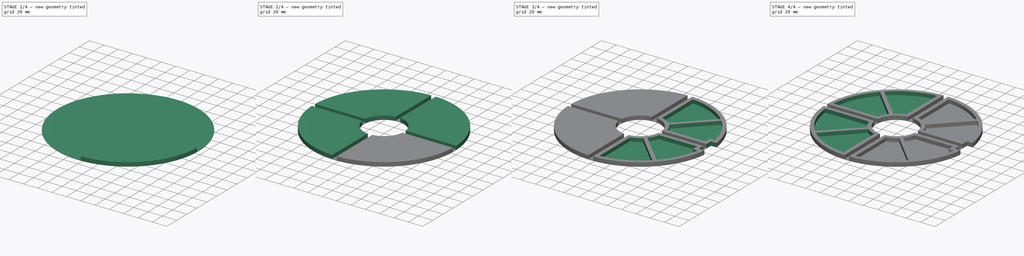
[diagram: build sequence overview — one tinted view per stage of 4, left to right]
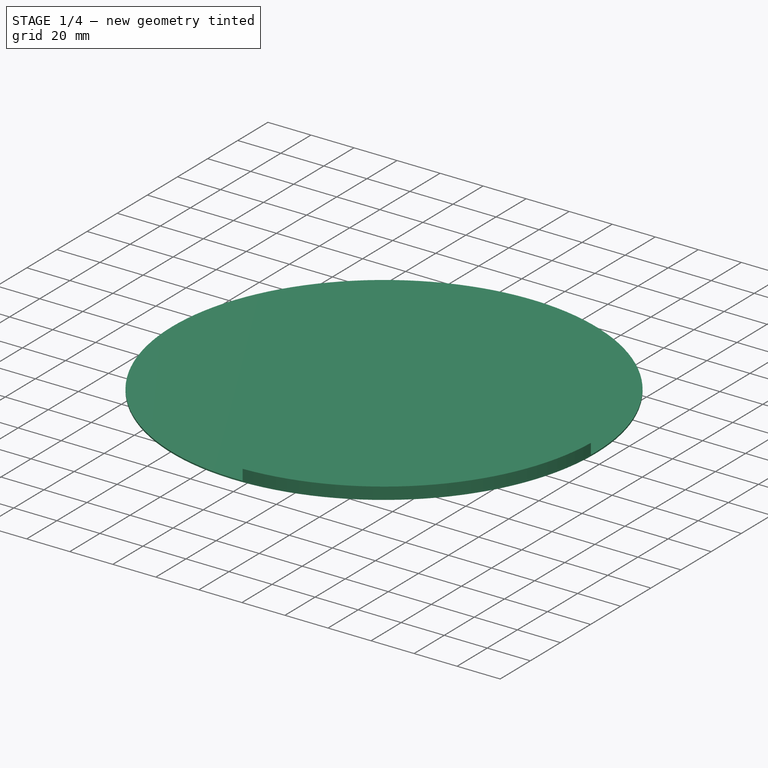
[diagram: stage 1 of 4 — iso view after this stage's code; geometry added in this stage tinted green]
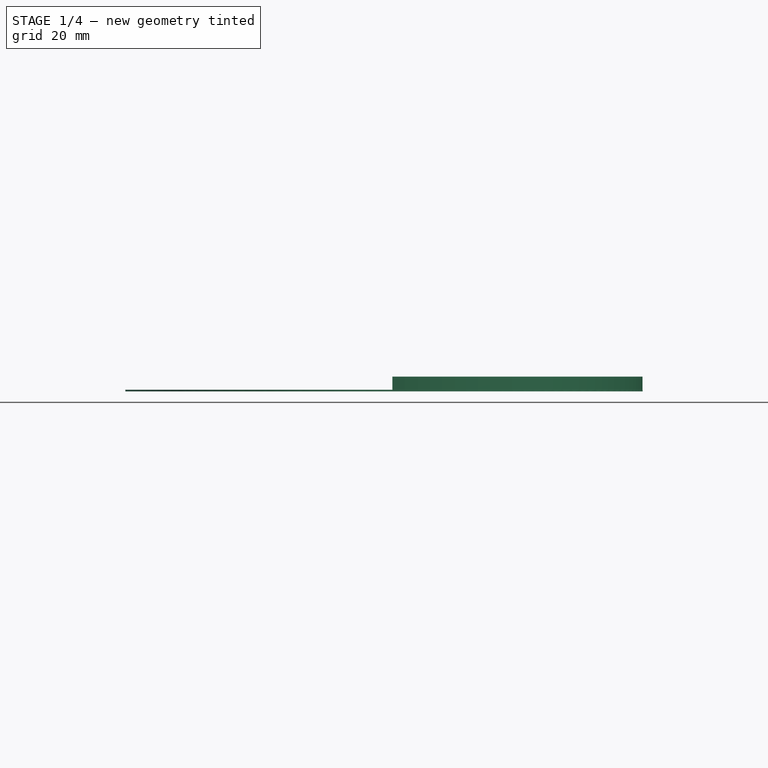
[diagram: stage 1 of 4 — front view after this stage's code; geometry added in this stage tinted green]
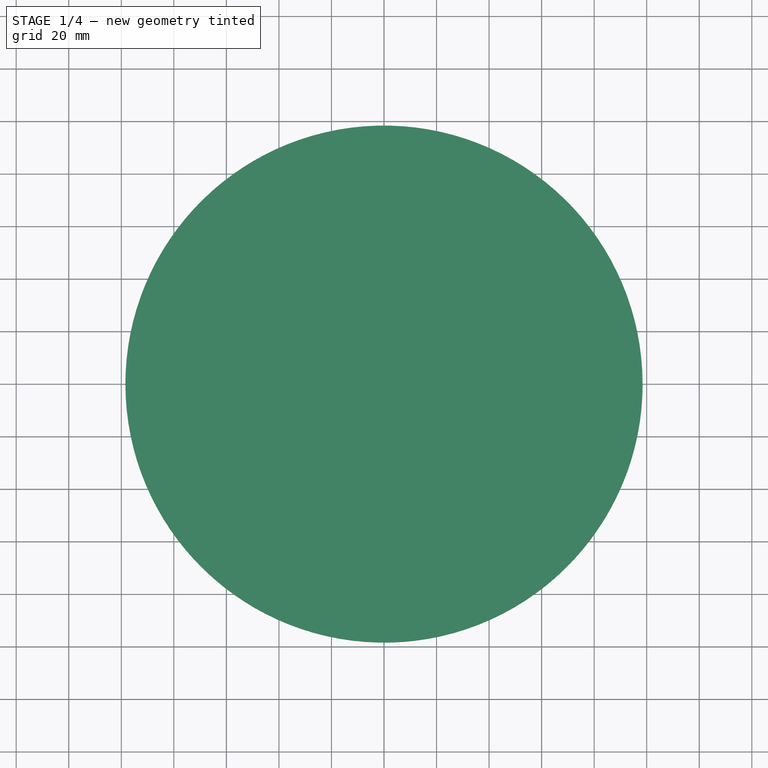
[diagram: stage 1 of 4 — top view after this stage's code; geometry added in this stage tinted green]
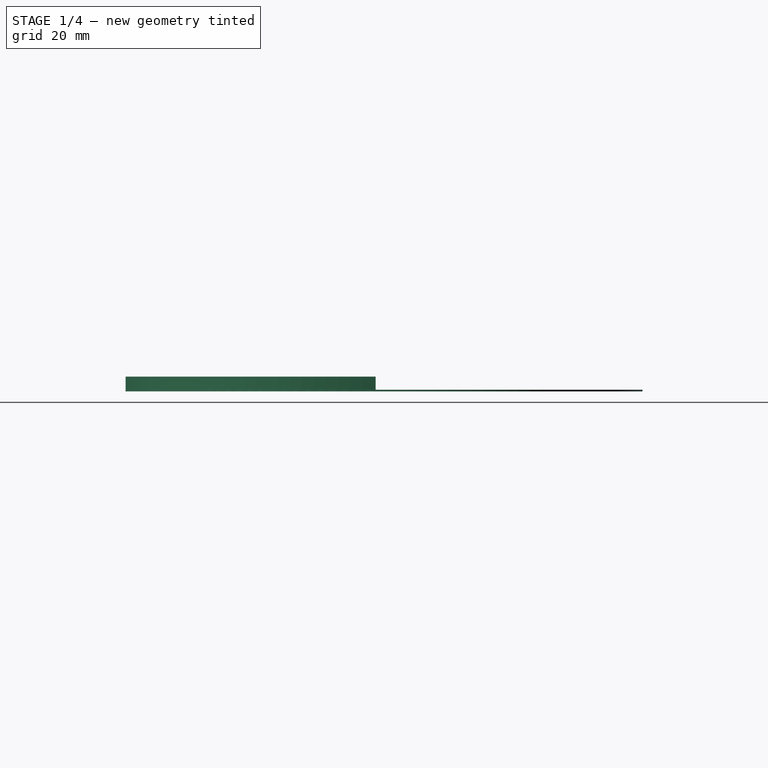
[diagram: stage 1 of 4 — right view after this stage's code; geometry added in this stage tinted green]
FCSTD DOCUMENT  (FreeCAD 0.14R3702 (Git))
Label: spacer
License: CC-BY 3.0
LicenseURL: http://creativecommons.org/licenses/by/3.0/
objects: Sketcher::SketchObject×6, PartDesign::Pocket×4, PartDesign::Pad×2, PartDesign::Mirrored×2, PartDesign::PolarPattern×1
note: 21 computed .brp shape members not serialized (recipe doc carries the construction recipe); baked Part::Feature solids carry a one-line shape summary decoded from their .brp

FEATURE [Sketcher::SketchObject] Sketch
  sketch-geometry (1):
    g0: Circle CenterX=0 CenterY=0 CenterZ=0 NormalX=0 NormalY=0 NormalZ=1 Radius=98.425
  constraints (2):
    c: Coincident(g0,g-1)
    c: Radius(g0) = 98.425
FEATURE [PartDesign::Pad] Pad
  Length = 0.6
  Length2 = 0.3
  Reversed = true
  Sketch = -> Sketch
  Type = 0
FEATURE [Sketcher::SketchObject] Sketch001
  Support = -> Pad [Face2]
  sketch-geometry (4):
    g0: ArcOfCircle CenterX=0 CenterY=0 CenterZ=0 NormalX=0 NormalY=0 NormalZ=1 Radius=22.225 StartAngle=4.85574 EndAngle=6.13984
    g1: ArcOfCircle CenterX=0 CenterY=0 CenterZ=0 NormalX=0 NormalY=0 NormalZ=1 Radius=98.425 StartAngle=4.74465 EndAngle=6.25092
    g2: LineSegment StartX=21.997 StartY=-3.175 StartZ=0 EndX=98.3738 EndY=-3.175 EndZ=0
    g3: LineSegment StartX=3.175 StartY=-21.997 StartZ=0 EndX=3.175 EndY=-98.3738 EndZ=0
  constraints (12):
    c: Coincident(g0,g-1)
    c: Coincident(g1,g-1)
    c: Horizontal(g2)
    c: Coincident(g2,g1)
    c: Coincident(g2,g0)
    c: Coincident(g3,g0)
    c: Coincident(g3,g1)
    c: Vertical(g3)
    c: Radius(g0) = 22.225
    c: Radius(g1) = 98.425
    c: DistanceY(g-1,g0) = -3.175
    c: DistanceX(g-1,g0) = 3.175
FEATURE [PartDesign::Pad] Pad001
  Length = 5
  Length2 = 0.3
  Sketch = -> Sketch001
  Type = 0
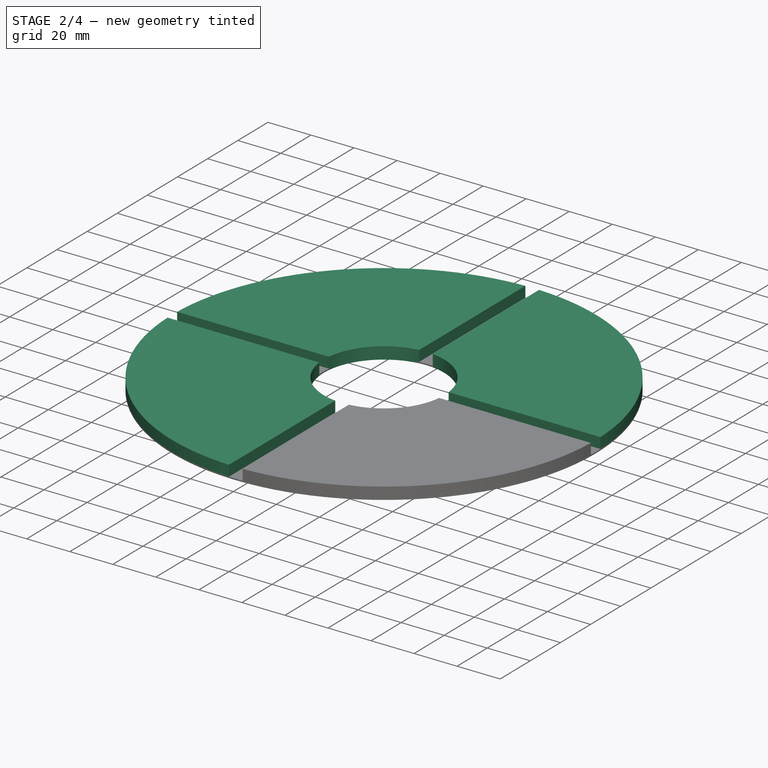
[diagram: stage 2 of 4 — iso view after this stage's code; geometry added in this stage tinted green]
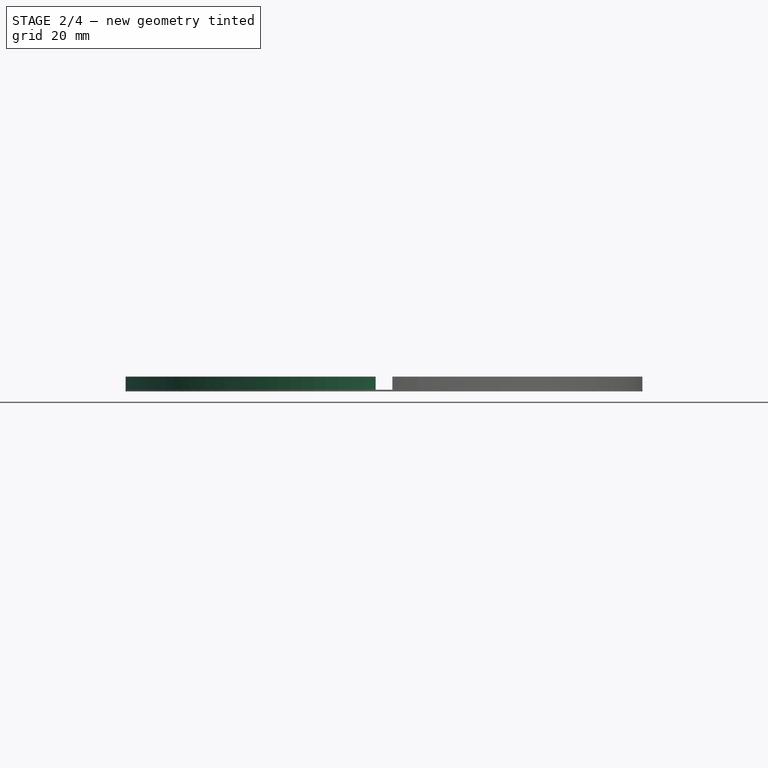
[diagram: stage 2 of 4 — front view after this stage's code; geometry added in this stage tinted green]
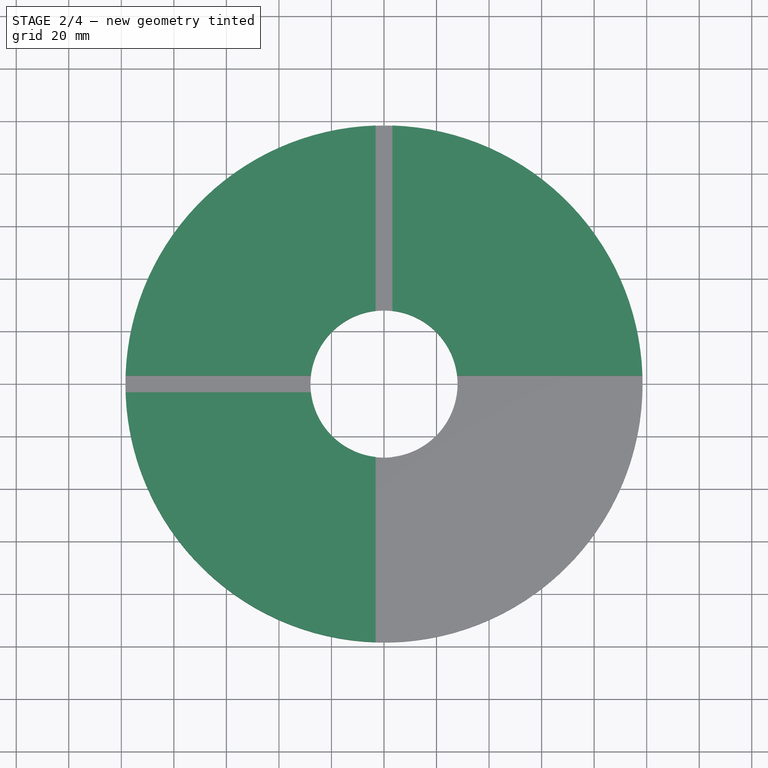
[diagram: stage 2 of 4 — top view after this stage's code; geometry added in this stage tinted green]
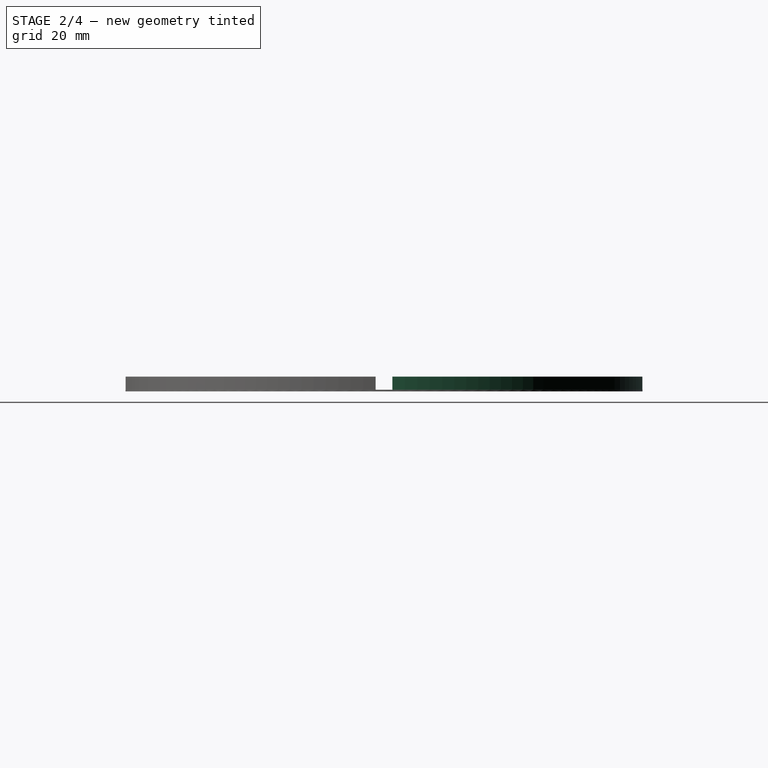
[diagram: stage 2 of 4 — right view after this stage's code; geometry added in this stage tinted green]
FEATURE [PartDesign::PolarPattern] PolarPattern
  Angle = 360
  Axis = -> Sketch001 [N_Axis]
  Occurrences = 4
  Originals = -> [Pad001]
FEATURE [Sketcher::SketchObject] Sketch002
  Placement = pos=(0,0,5) rot=(0,0,1;0rad)
  Support = -> PolarPattern [Face23]
  sketch-geometry (1):
    g0: Circle CenterX=0 CenterY=0 CenterZ=0 NormalX=0 NormalY=0 NormalZ=1 Radius=28
  constraints (2):
    c: Coincident(g0,g-1)
    c: Radius(g0) = 28
FEATURE [PartDesign::Pocket] Pocket
  Length = 5
  Sketch = -> Sketch002
  Type = 1
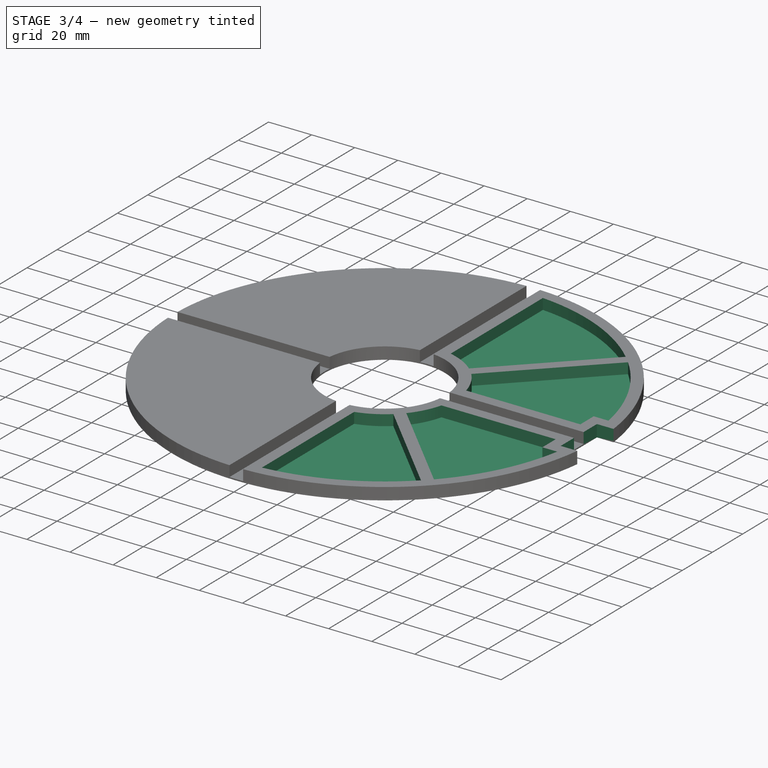
[diagram: stage 3 of 4 — iso view after this stage's code; geometry added in this stage tinted green]
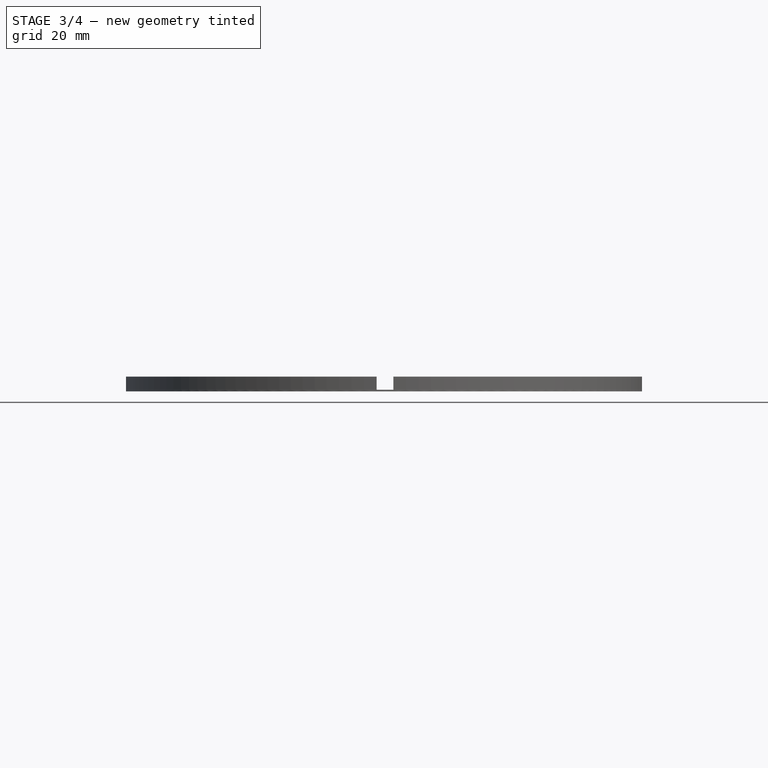
[diagram: stage 3 of 4 — front view after this stage's code; geometry added in this stage tinted green]
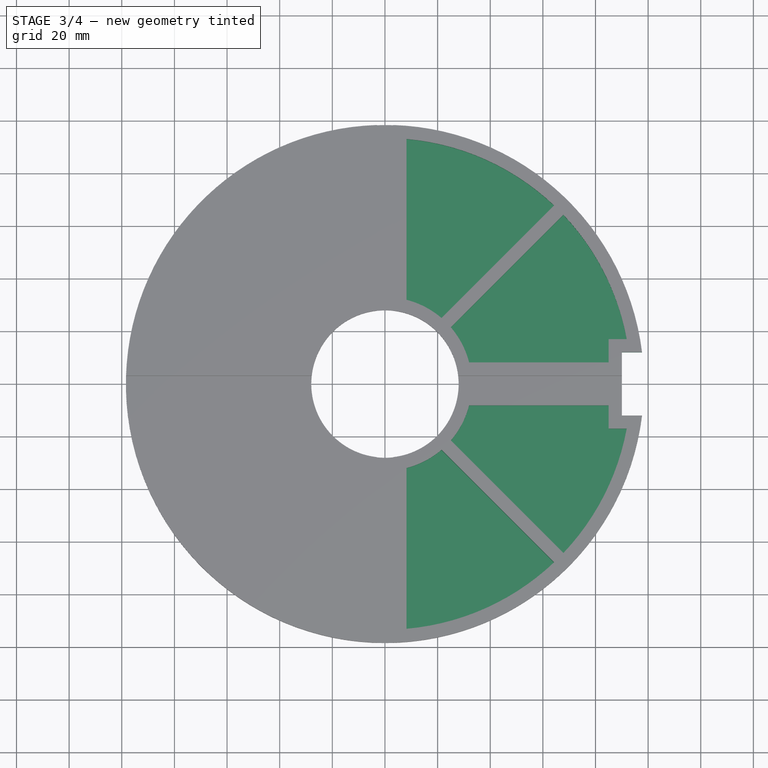
[diagram: stage 3 of 4 — top view after this stage's code; geometry added in this stage tinted green]
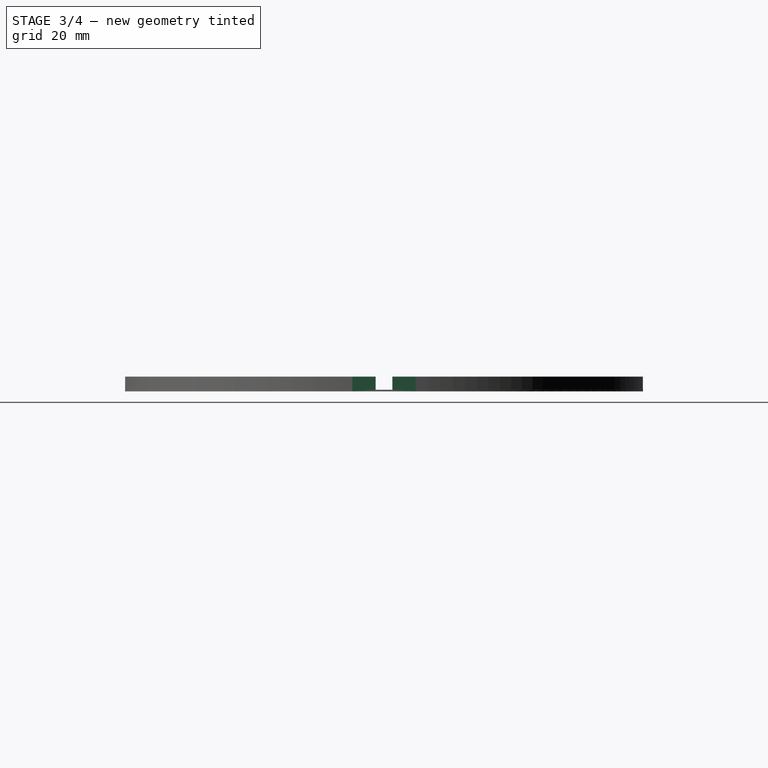
[diagram: stage 3 of 4 — right view after this stage's code; geometry added in this stage tinted green]
FEATURE [Sketcher::SketchObject] Sketch003
  Placement = pos=(0,0,-0.6) rot=(1,0,0;3.14159rad)
  Support = -> Pocket [Face1]
  sketch-geometry (4):
    g0: LineSegment StartX=105 StartY=12 StartZ=0 EndX=90 EndY=12 EndZ=0
    g1: LineSegment StartX=90 StartY=12 StartZ=0 EndX=90 EndY=-12 EndZ=0
    g2: LineSegment StartX=90 StartY=-12 StartZ=0 EndX=105 EndY=-12 EndZ=0
    g3: LineSegment StartX=105 StartY=-12 StartZ=0 EndX=105 EndY=12 EndZ=0
  constraints (12):
    c: Coincident(g0,g1)
    c: Coincident(g1,g2)
    c: Coincident(g2,g3)
    c: Coincident(g3,g0)
    c: Horizontal(g0)
    c: Horizontal(g2)
    c: Vertical(g1)
    c: Vertical(g3)
    c: DistanceX(g-1,g0) = 90
    c: DistanceY(g-1,g0) = 12
    c: DistanceY(g-1,g1) = -12
    c: DistanceX(g2,g1) = -15
FEATURE [PartDesign::Pocket] Pocket001
  Length = 5
  Sketch = -> Sketch003
  Type = 1
FEATURE [Sketcher::SketchObject] Sketch004
  ExternalGeometry = -> [Pocket001]
  Placement = pos=(0,0,5) rot=(0,0,1;0rad)
  Support = -> Pocket001 [Face14]
  sketch-geometry (10):
    g0: ArcOfCircle CenterX=0 CenterY=0 CenterZ=0 NormalX=0 NormalY=0 NormalZ=1 Radius=33 StartAngle=4.96272 EndAngle=5.42196
    g1: ArcOfCircle CenterX=0 CenterY=0 CenterZ=0 NormalX=0 NormalY=0 NormalZ=1 Radius=93.425 StartAngle=4.8 EndAngle=5.47103
    g2: ArcOfCircle CenterX=0 CenterY=0 CenterZ=0 NormalX=0 NormalY=0 NormalZ=1 Radius=33 StartAngle=5.57362 EndAngle=6.03285
    g3: ArcOfCircle CenterX=0 CenterY=0 CenterZ=0 NormalX=0 NormalY=0 NormalZ=1 Radius=93.425 StartAngle=5.52455 EndAngle=6.1002
    g4: LineSegment StartX=8.175 StartY=-31.9714 StartZ=0 EndX=8.175 EndY=-93.0666 EndZ=0
    g5: LineSegment StartX=21.4998 StartY=-25.0352 StartZ=0 EndX=64.2701 EndY=-67.8055 EndZ=0
    g6: LineSegment StartX=25.0353 StartY=-21.4996 StartZ=0 EndX=67.8056 EndY=-64.27 EndZ=0
    g7: LineSegment StartX=31.9714 StartY=-8.175 StartZ=0 EndX=85 EndY=-8.175 EndZ=0
    g8: LineSegment StartX=85 StartY=-17 StartZ=0 EndX=91.8653 EndY=-17 EndZ=0
    g9: LineSegment StartX=85 StartY=-17 StartZ=0 EndX=85 EndY=-8.175 EndZ=0
  constraints (30):
    c: Coincident(g0,g-1)
    c: Coincident(g1,g-1)
    c: Coincident(g2,g-1)
    c: Coincident(g3,g-1)
    c: Coincident(g4,g0)
    c: Coincident(g4,g1)
    c: Coincident(g5,g0)
    c: Coincident(g5,g1)
    c: Coincident(g6,g2)
    c: Coincident(g6,g3)
    c: Coincident(g7,g2)
    c: Coincident(g8,g3)
    c: Horizontal(g7)
    c: Vertical(g4)
    c: DistanceY(g2,g-4) = 5
    c: DistanceX(g0,g-6) = -5
    c: DistanceY(g3,g-7) = 5
    c: DistanceX(g-7,g7) = -5
    c: Coincident(g9,g8)
    c: Coincident(g9,g7)
    c: Vertical(g9)
    c: Horizontal(g8)
    c: Distance(g2,g0) = 5
    c: Angle(g6,g7) = 0.785398
    c: Angle(g4,g5) = 0.785398
    c: Radius(g0) = 33
    c: Radius(g2) = 33
    c: Radius(g3) = 93.425
    c: Radius(g1) = 93.425
    c: Distance(g1,g3) = 5
FEATURE [PartDesign::Pocket] Pocket002
  Length = 5
  Sketch = -> Sketch004
  Type = 0
FEATURE [PartDesign::Mirrored] Mirrored
  MirrorPlane = -> Sketch004 [H_Axis]
  Originals = -> [Pocket002]
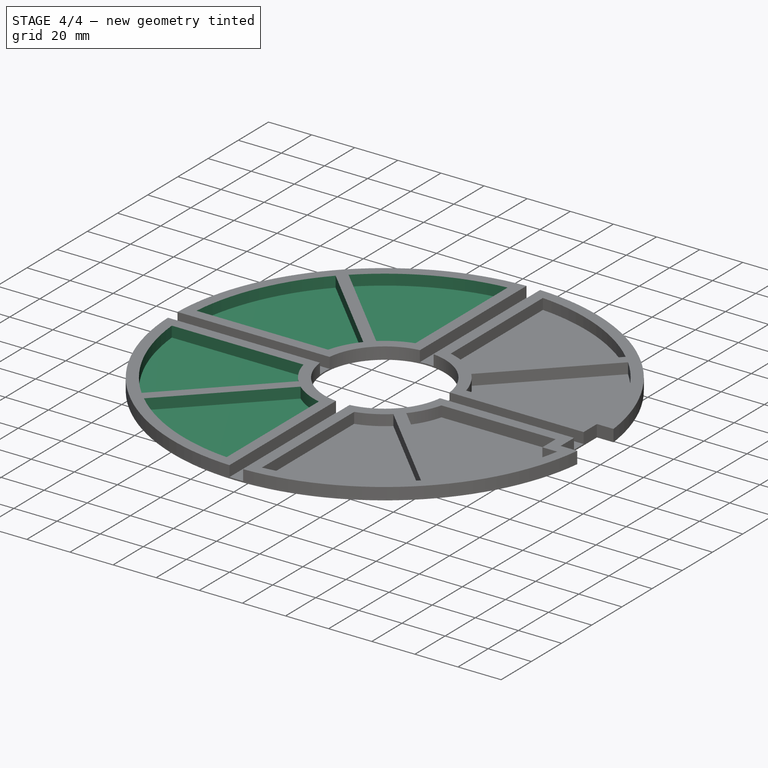
[diagram: stage 4 of 4 — iso view after this stage's code; geometry added in this stage tinted green]
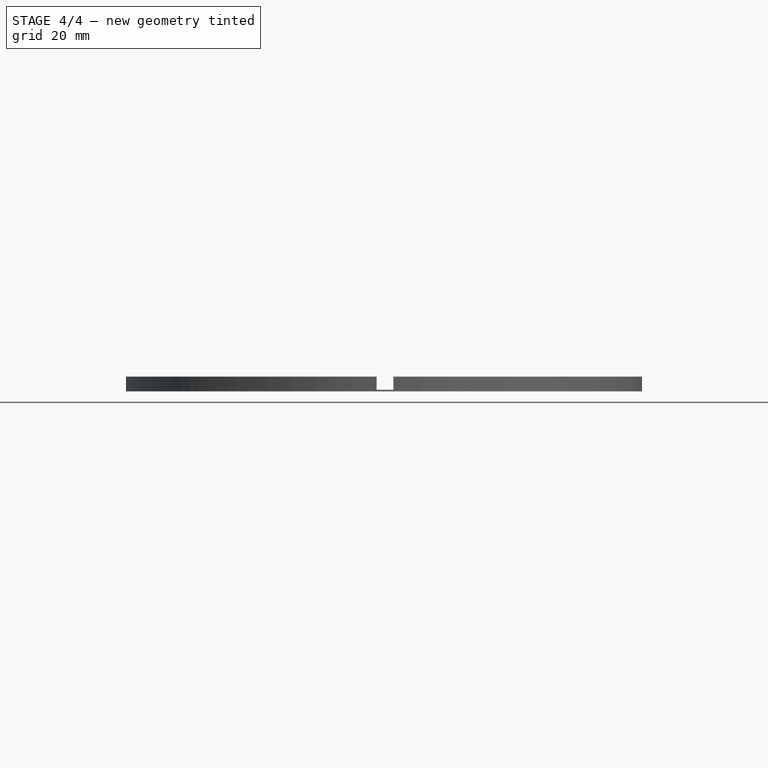
[diagram: stage 4 of 4 — front view after this stage's code; geometry added in this stage tinted green]
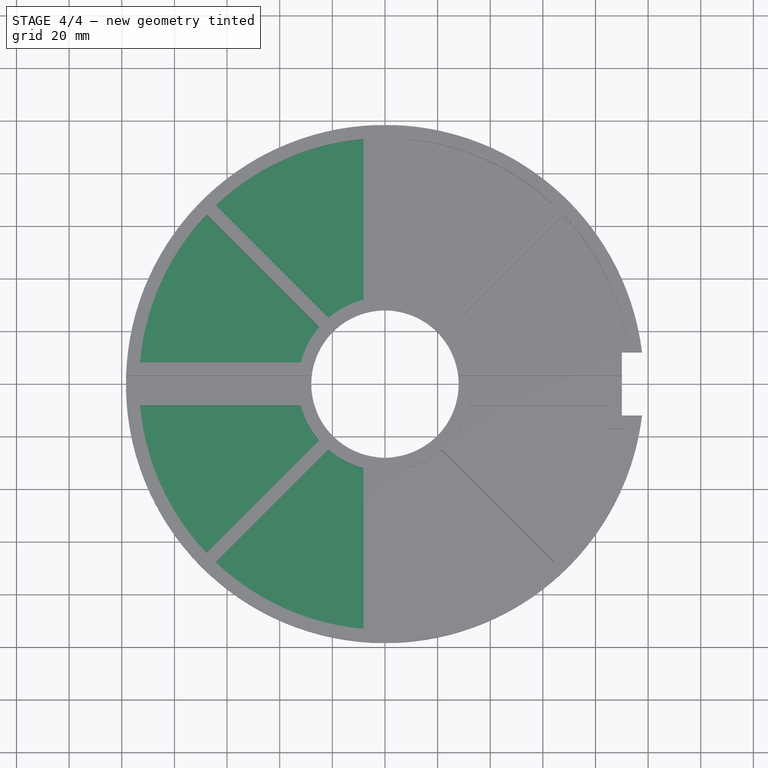
[diagram: stage 4 of 4 — top view after this stage's code; geometry added in this stage tinted green]
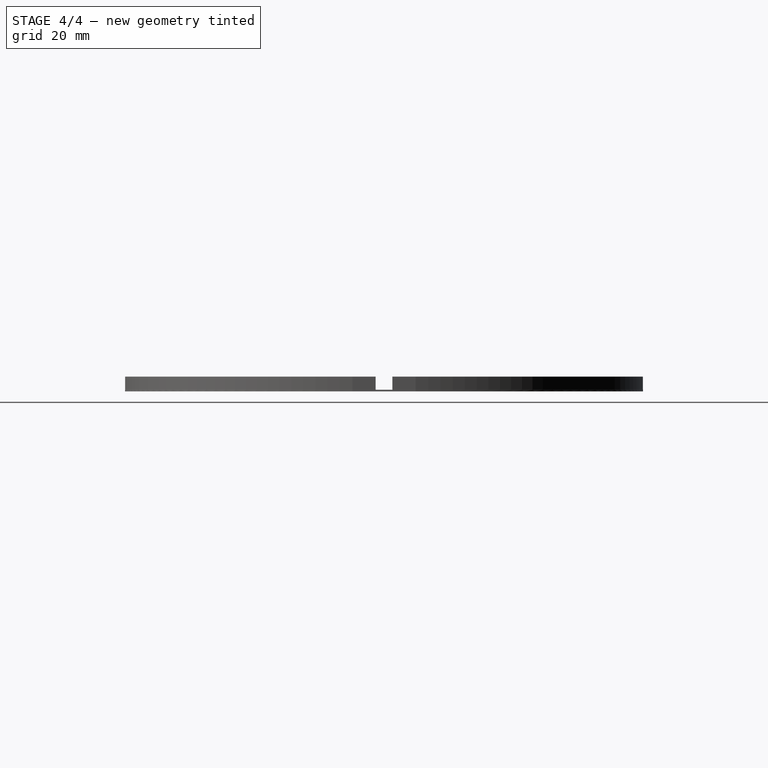
[diagram: stage 4 of 4 — right view after this stage's code; geometry added in this stage tinted green]
FEATURE [Sketcher::SketchObject] Sketch005
  ExternalGeometry = -> [Mirrored]
  Placement = pos=(0,0,5) rot=(0,0,1;0rad)
  Support = -> Mirrored [Face24]
  sketch-geometry (8):
    g0: ArcOfCircle CenterX=0 CenterY=0 CenterZ=0 NormalX=0 NormalY=0 NormalZ=1 Radius=33 StartAngle=3.39193 EndAngle=3.85116
    g1: ArcOfCircle CenterX=0 CenterY=0 CenterZ=0 NormalX=0 NormalY=0 NormalZ=1 Radius=33 StartAngle=4.00282 EndAngle=4.46206
    g2: ArcOfCircle CenterX=0 CenterY=0 CenterZ=0 NormalX=0 NormalY=0 NormalZ=1 Radius=93.425 StartAngle=3.22921 EndAngle=3.90023
    g3: ArcOfCircle CenterX=0 CenterY=0 CenterZ=0 NormalX=0 NormalY=0 NormalZ=1 Radius=93.425 StartAngle=3.95375 EndAngle=4.62477
    g4: LineSegment StartX=-93.0666 StartY=-8.175 StartZ=0 EndX=-31.9714 EndY=-8.175 EndZ=0
    g5: LineSegment StartX=-25.0352 StartY=-21.4998 StartZ=0 EndX=-67.8055 EndY=-64.2701 EndZ=0
    g6: LineSegment StartX=-21.4996 StartY=-25.0353 StartZ=0 EndX=-64.27 EndY=-67.8056 EndZ=0
    g7: LineSegment StartX=-8.175 StartY=-31.9714 StartZ=0 EndX=-8.175 EndY=-93.0666 EndZ=0
  constraints (24):
    c: Coincident(g0,g-1)
    c: Coincident(g1,g-1)
    c: Coincident(g2,g-1)
    c: Coincident(g3,g-1)
    c: Coincident(g4,g2)
    c: Coincident(g4,g0)
    c: Horizontal(g4)
    c: Coincident(g5,g0)
    c: Coincident(g5,g2)
    c: Coincident(g6,g1)
    c: Coincident(g6,g3)
    c: Coincident(g7,g1)
    c: Coincident(g7,g3)
    c: Vertical(g7)
    c: Radius(g0) = 33
    c: Radius(g1) = 33
    c: Radius(g3) = 93.425
    c: Radius(g2) = 93.425
    c: DistanceX(g3,g-4) = 5
    c: DistanceY(g2,g-3) = 5
    c: Angle(g6,g7) = 0.785398
    c: Angle(g4,g5) = 0.785398
    c: Distance(g0,g1) = 5
    c: Distance(g2,g3) = 5
FEATURE [PartDesign::Pocket] Pocket003
  Length = 5
  Sketch = -> Sketch005
  Type = 0
FEATURE [PartDesign::Mirrored] Mirrored001
  MirrorPlane = -> Sketch005 [H_Axis]
  Originals = -> [Pocket003]
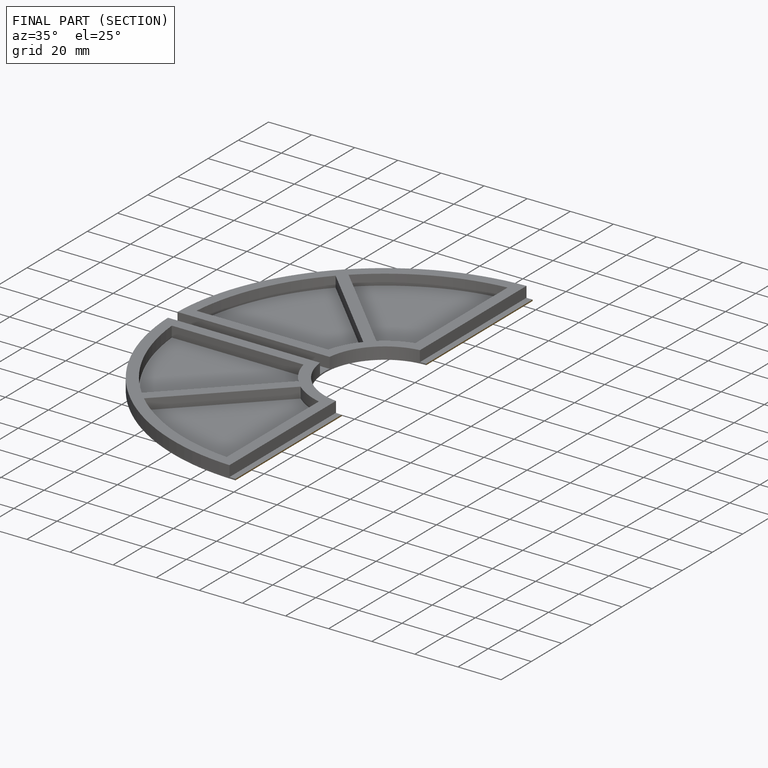
[diagram: finished part — half-section view (interior)]
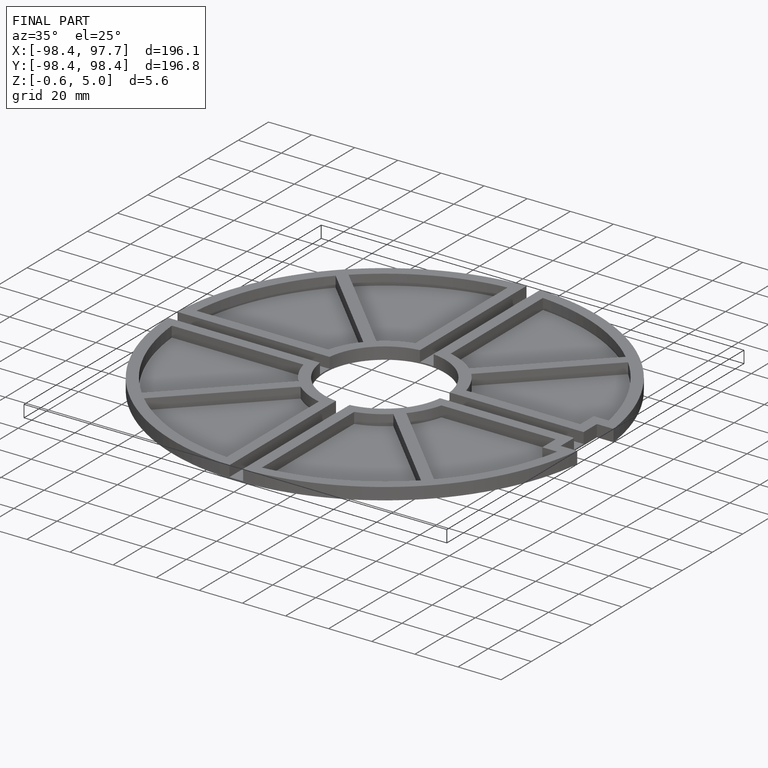
[diagram: finished part — iso view with bounding-box wireframe]
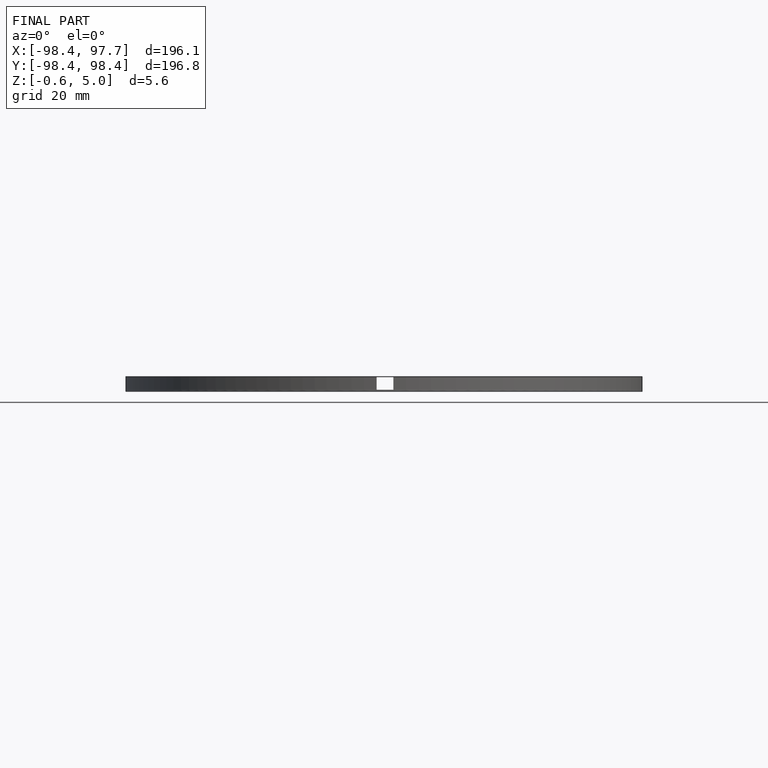
[diagram: finished part — front view with bounding-box wireframe]
